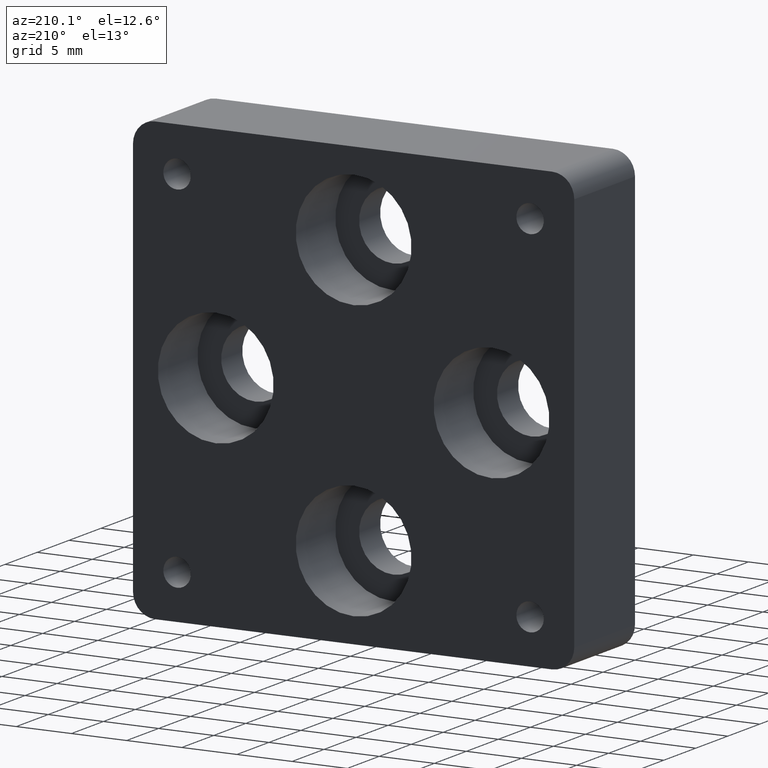
[diagram: clean part render]
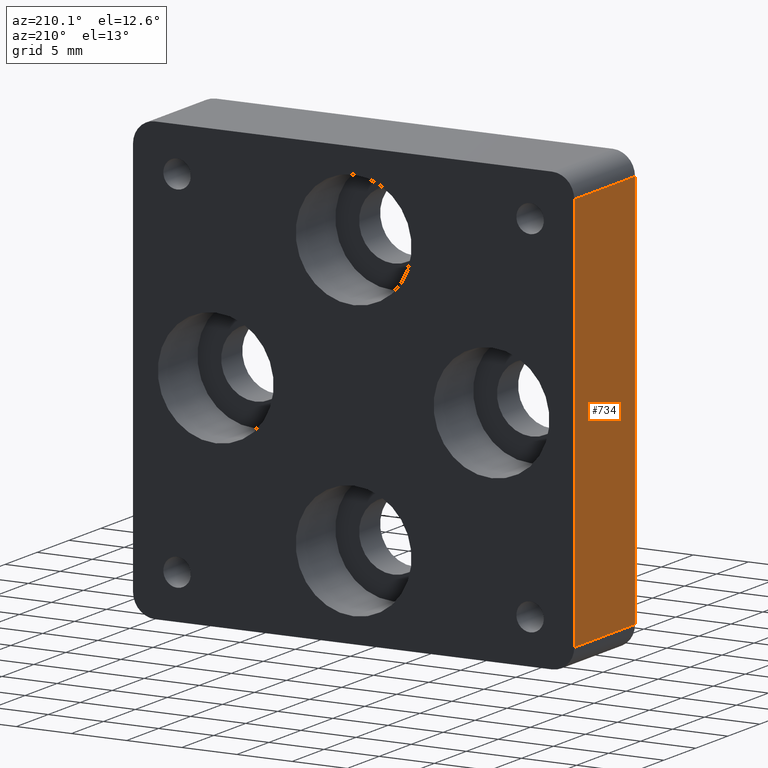
[diagram: same view with one face highlighted and labeled with its STEP entity id]
A machine part, auxiliary view. The second image highlights one B-rep face of the part: STEP entity #734.
In plain terms, the highlighted planar face has unit normal (1, 0, -0).
Its self-contained STEP definition (entity closure, byte-faithful):
#61 = ORIENTED_EDGE ( 'NONE', *, *, #117, .T. ) ;
#117 = EDGE_CURVE ( 'NONE', #214, #939, #329, .T. ) ;
#195 = DIRECTION ( 'NONE',  ( 3.469446951953615175E-16, 0.000000000000000000, 1.000000000000000000 ) ) ;
#209 = DIRECTION ( 'NONE',  ( 3.469446951953615175E-16, 0.000000000000000000, 1.000000000000000000 ) ) ;
#214 = VERTEX_POINT ( 'NONE', #643 ) ;
#288 = CARTESIAN_POINT ( 'NONE',  ( -20.00000000000000000, 9.500000000000000000, -18.00000000000000000 ) ) ;
#293 = PLANE ( 'NONE',  #333 ) ;
#296 = VERTEX_POINT ( 'NONE', #664 ) ;
#306 = LINE ( 'NONE', #1016, #992 ) ;
#329 = LINE ( 'NONE', #1122, #1010 ) ;
#333 = AXIS2_PLACEMENT_3D ( 'NONE', #380, #1178, #386 ) ;
#371 = DIRECTION ( 'NONE',  ( 0.000000000000000000, -1.000000000000000000, 0.000000000000000000 ) ) ;
#380 = CARTESIAN_POINT ( 'NONE',  ( -20.00000000000000000, 9.500000000000000000, 20.00000000000000000 ) ) ;
#386 = DIRECTION ( 'NONE',  ( -3.469446951953615175E-16, 0.000000000000000000, -1.000000000000000000 ) ) ;
#388 = LINE ( 'NONE', #288, #682 ) ;
#423 = VECTOR ( 'NONE', #195, 1000.000000000000000 ) ;
#550 = EDGE_CURVE ( 'NONE', #1205, #296, #388, .T. ) ;
#614 = DIRECTION ( 'NONE',  ( 0.000000000000000000, 1.000000000000000000, 0.000000000000000000 ) ) ;
#617 = ORIENTED_EDGE ( 'NONE', *, *, #625, .T. ) ;
#625 = EDGE_CURVE ( 'NONE', #296, #214, #977, .T. ) ;
#643 = CARTESIAN_POINT ( 'NONE',  ( -20.00000000000000000, 0.000000000000000000, 18.00000000000000000 ) ) ;
#664 = CARTESIAN_POINT ( 'NONE',  ( -20.00000000000000000, 0.000000000000000000, -18.00000000000000000 ) ) ;
#682 = VECTOR ( 'NONE', #371, 1000.000000000000000 ) ;
#695 = EDGE_LOOP ( 'NONE', ( #617, #61, #906, #1124 ) ) ;
#734 = ADVANCED_FACE ( 'NONE', ( #984 ), #293, .F. ) ;
#906 = ORIENTED_EDGE ( 'NONE', *, *, #1208, .F. ) ;
#916 = CARTESIAN_POINT ( 'NONE',  ( -20.00000000000000000, 9.500000000000000000, -18.00000000000000000 ) ) ;
#939 = VERTEX_POINT ( 'NONE', #943 ) ;
#943 = CARTESIAN_POINT ( 'NONE',  ( -20.00000000000000000, 9.500000000000000000, 18.00000000000000000 ) ) ;
#977 = LINE ( 'NONE', #1098, #423 ) ;
#984 = FACE_OUTER_BOUND ( 'NONE', #695, .T. ) ;
#992 = VECTOR ( 'NONE', #209, 1000.000000000000000 ) ;
#1010 = VECTOR ( 'NONE', #614, 1000.000000000000000 ) ;
#1016 = CARTESIAN_POINT ( 'NONE',  ( -20.00000000000000000, 9.500000000000000000, 20.00000000000000000 ) ) ;
#1098 = CARTESIAN_POINT ( 'NONE',  ( -20.00000000000000000, 0.000000000000000000, 20.00000000000000000 ) ) ;
#1122 = CARTESIAN_POINT ( 'NONE',  ( -20.00000000000000000, 9.500000000000000000, 18.00000000000000000 ) ) ;
#1124 = ORIENTED_EDGE ( 'NONE', *, *, #550, .T. ) ;
#1178 = DIRECTION ( 'NONE',  ( 1.000000000000000000, 0.000000000000000000, -3.469446951953615175E-16 ) ) ;
#1205 = VERTEX_POINT ( 'NONE', #916 ) ;
#1208 = EDGE_CURVE ( 'NONE', #1205, #939, #306, .T. ) ;